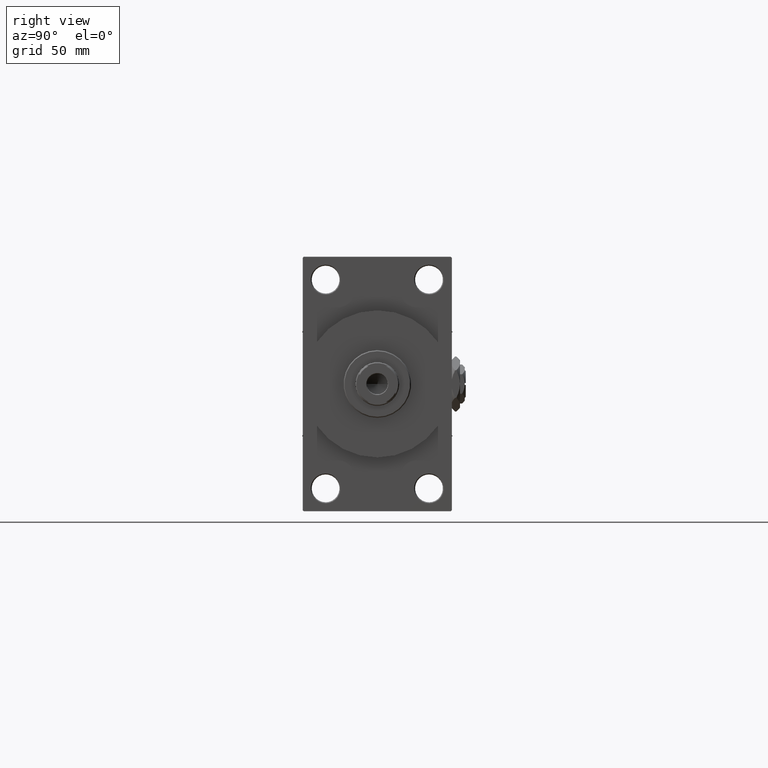
[diagram: clean part render]
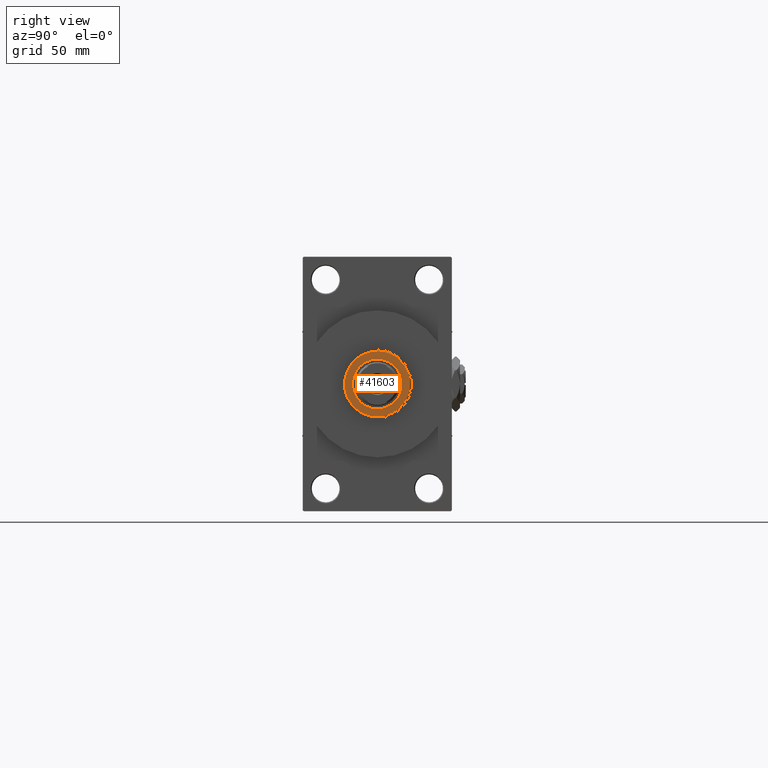
[diagram: same view with one face highlighted and labeled with its STEP entity id]
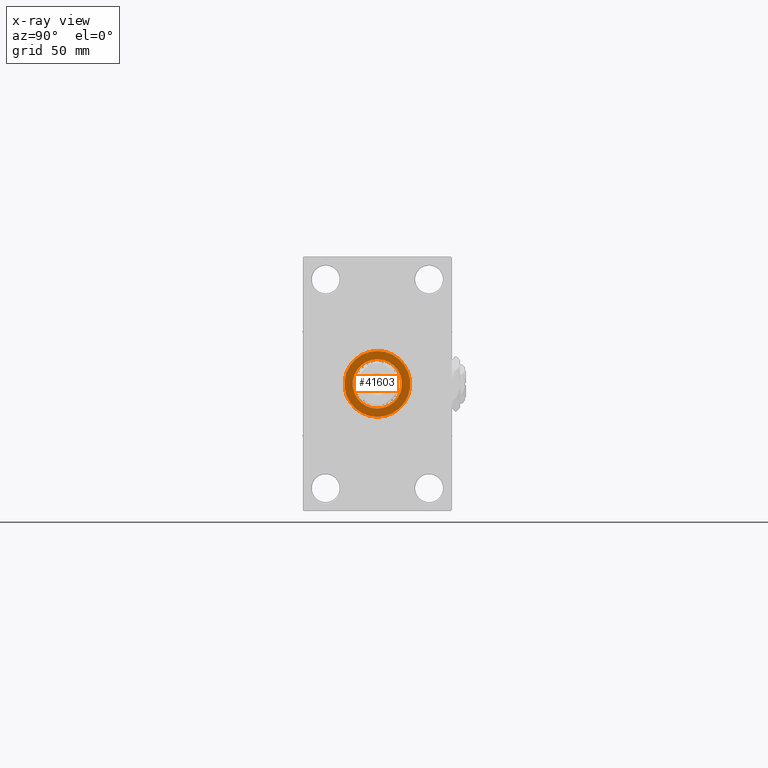
[diagram: x-ray of the same camera — body ghosted, the highlighted face saturated]
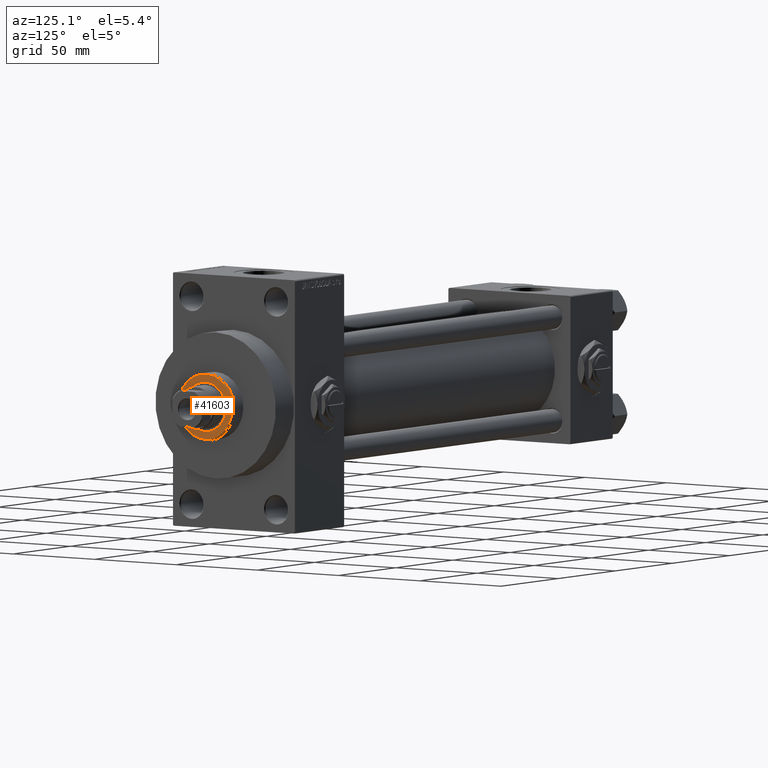
[diagram: same view with one face highlighted and labeled with its STEP entity id]
A machine part, right view. The second image highlights one B-rep face of the part: STEP entity #41603.
The next image is the same camera in x-ray: the body ghosted, the highlighted face saturated — about 0% of this face is hidden behind the body in this view.
A second angle (auxiliary view) of the same face is appended — the face is thin or edge-on in the first view.
In plain terms, the highlighted planar face has unit normal (1, -0, -0).
Its self-contained STEP definition (entity closure, byte-faithful):
#145 = FACE_OUTER_BOUND ( 'NONE', #35129, .T. ) ;
#2976 = DIRECTION ( 'NONE',  ( 0.000000000000000000, 0.000000000000000000, 1.000000000000000000 ) ) ;
#3736 = CARTESIAN_POINT ( 'NONE',  ( -12.50000000000000000, 1.530808498934191521E-15, 52.25999999999999801 ) ) ;
#3902 = DIRECTION ( 'NONE',  ( 0.000000000000000000, 0.000000000000000000, 1.000000000000000000 ) ) ;
#4092 = CARTESIAN_POINT ( 'NONE',  ( 0.000000000000000000, 0.000000000000000000, 52.25999999999999801 ) ) ;
#4684 = VERTEX_POINT ( 'NONE', #22952 ) ;
#4829 = VERTEX_POINT ( 'NONE', #3736 ) ;
#7085 = ORIENTED_EDGE ( 'NONE', *, *, #17836, .F. ) ;
#7806 = AXIS2_PLACEMENT_3D ( 'NONE', #15354, #3902, #42510 ) ;
#10970 = CARTESIAN_POINT ( 'NONE',  ( -16.50000000000000000, 0.000000000000000000, 52.25999999999999801 ) ) ;
#11610 = VERTEX_POINT ( 'NONE', #26299 ) ;
#12054 = DIRECTION ( 'NONE',  ( 1.000000000000000000, 0.000000000000000000, 0.000000000000000000 ) ) ;
#13489 = DIRECTION ( 'NONE',  ( 1.000000000000000000, 0.000000000000000000, 0.000000000000000000 ) ) ;
#14872 = FACE_BOUND ( 'NONE', #16647, .T. ) ;
#15131 = EDGE_CURVE ( 'NONE', #4684, #42038, #18937, .T. ) ;
#15354 = CARTESIAN_POINT ( 'NONE',  ( 0.000000000000000000, 0.000000000000000000, 52.25999999999999801 ) ) ;
#16647 = EDGE_LOOP ( 'NONE', ( #37212, #7085 ) ) ;
#16979 = EDGE_CURVE ( 'NONE', #42038, #4684, #37293, .T. ) ;
#17036 = ORIENTED_EDGE ( 'NONE', *, *, #15131, .T. ) ;
#17836 = EDGE_CURVE ( 'NONE', #4829, #11610, #47679, .T. ) ;
#18937 = CIRCLE ( 'NONE', #37224, 16.50000000000000000 ) ;
#19787 = AXIS2_PLACEMENT_3D ( 'NONE', #33115, #2976, #41345 ) ;
#20341 = CARTESIAN_POINT ( 'NONE',  ( 0.000000000000000000, 0.000000000000000000, 52.25999999999999801 ) ) ;
#21202 = CARTESIAN_POINT ( 'NONE',  ( 0.000000000000000000, 0.000000000000000000, 52.25999999999999801 ) ) ;
#22952 = CARTESIAN_POINT ( 'NONE',  ( 16.50000000000000000, 2.051283388571816887E-15, 52.25999999999999801 ) ) ;
#26299 = CARTESIAN_POINT ( 'NONE',  ( 12.50000000000000000, 0.000000000000000000, 52.25999999999999801 ) ) ;
#27761 = AXIS2_PLACEMENT_3D ( 'NONE', #21202, #36884, #13489 ) ;
#33115 = CARTESIAN_POINT ( 'NONE',  ( 0.000000000000000000, 0.000000000000000000, 52.25999999999999801 ) ) ;
#33567 = DIRECTION ( 'NONE',  ( 0.000000000000000000, 0.000000000000000000, 1.000000000000000000 ) ) ;
#35129 = EDGE_LOOP ( 'NONE', ( #41422, #17036 ) ) ;
#35301 = DIRECTION ( 'NONE',  ( 0.000000000000000000, 0.000000000000000000, 1.000000000000000000 ) ) ;
#36100 = AXIS2_PLACEMENT_3D ( 'NONE', #4092, #33567, #12054 ) ;
#36884 = DIRECTION ( 'NONE',  ( 0.000000000000000000, 0.000000000000000000, 1.000000000000000000 ) ) ;
#37212 = ORIENTED_EDGE ( 'NONE', *, *, #48298, .F. ) ;
#37224 = AXIS2_PLACEMENT_3D ( 'NONE', #20341, #35301, #47027 ) ;
#37293 = CIRCLE ( 'NONE', #19787, 16.50000000000000000 ) ;
#40865 = CIRCLE ( 'NONE', #36100, 12.50000000000000000 ) ;
#41345 = DIRECTION ( 'NONE',  ( 1.000000000000000000, 0.000000000000000000, 0.000000000000000000 ) ) ;
#41422 = ORIENTED_EDGE ( 'NONE', *, *, #16979, .T. ) ;
#41603 = ADVANCED_FACE ( 'NONE', ( #14872, #145 ), #45292, .T. ) ;
#42038 = VERTEX_POINT ( 'NONE', #10970 ) ;
#42510 = DIRECTION ( 'NONE',  ( 1.000000000000000000, 0.000000000000000000, -0.000000000000000000 ) ) ;
#45292 = PLANE ( 'NONE',  #7806 ) ;
#47027 = DIRECTION ( 'NONE',  ( 1.000000000000000000, 0.000000000000000000, 0.000000000000000000 ) ) ;
#47679 = CIRCLE ( 'NONE', #27761, 12.50000000000000000 ) ;
#48298 = EDGE_CURVE ( 'NONE', #11610, #4829, #40865, .T. ) ;